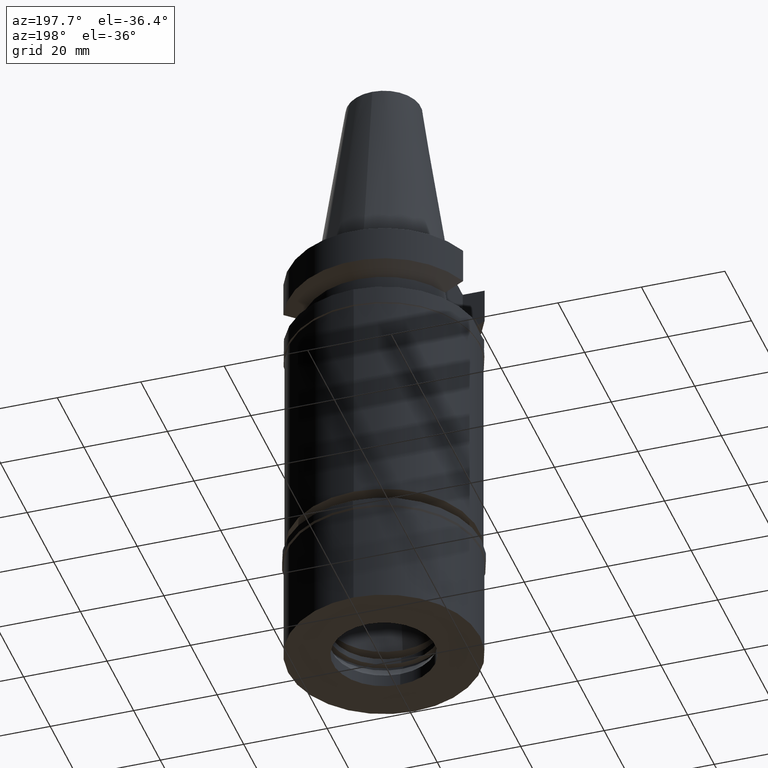
[diagram: clean part render]
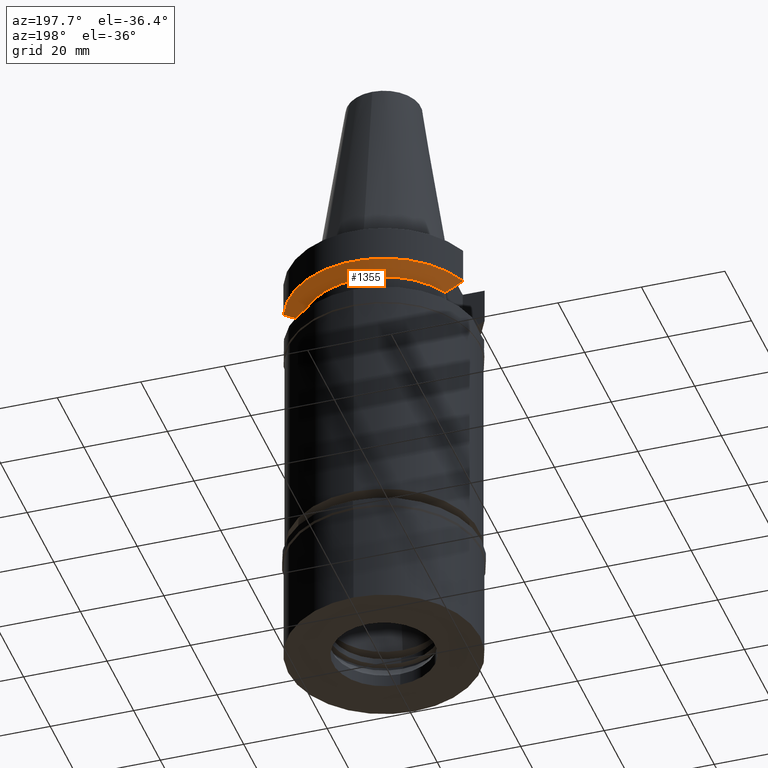
[diagram: same view with one face highlighted and labeled with its STEP entity id]
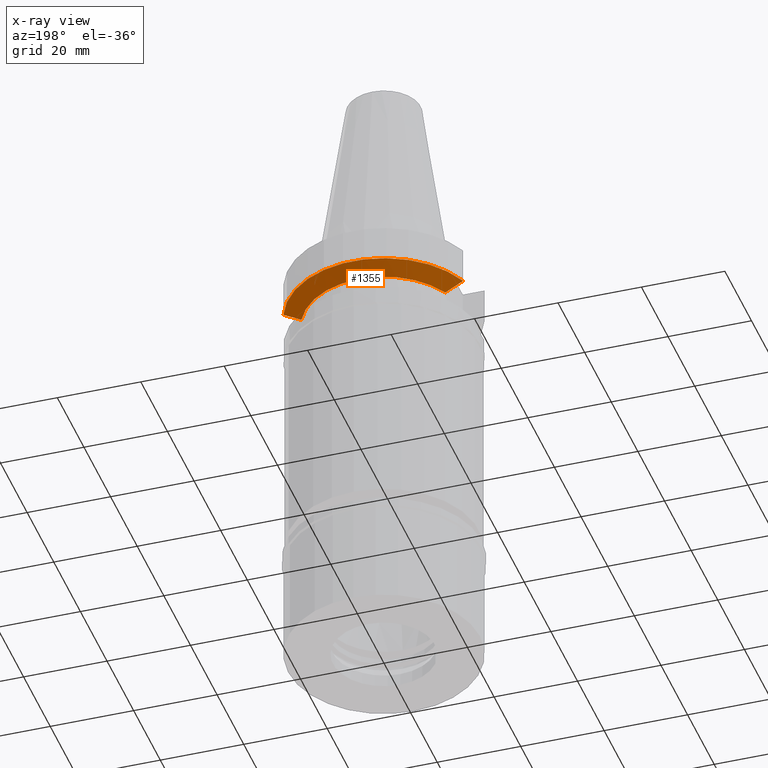
[diagram: x-ray of the same camera — body ghosted, the highlighted face saturated]
A machine part, auxiliary view. The second image highlights one B-rep face of the part: STEP entity #1355.
The next image is the same camera in x-ray: the body ghosted, the highlighted face saturated — about 0% of this face is hidden behind the body in this view.
In plain terms, the highlighted conical surface has half-angle 60 deg.
Its self-contained STEP definition (entity closure, byte-faithful):
#1 = AXIS2_PLACEMENT_3D ( 'NONE', #2934, #586, #2922 ) ;
#121 = CARTESIAN_POINT ( 'NONE',  ( 18.30334768190532557, 8.049999956193227391, -11.30291651679201870 ) ) ;
#128 = CARTESIAN_POINT ( 'NONE',  ( -18.96736186674000280, 8.050001277723000115, -10.94999977542999936 ) ) ;
#151 = CARTESIAN_POINT ( 'NONE',  ( 17.23531622902000038, 7.996491146276001771, -11.87660607782000000 ) ) ;
#162 = EDGE_LOOP ( 'NONE', ( #2795, #2017, #311, #434, #1402, #1819 ) ) ;
#225 = EDGE_CURVE ( 'NONE', #1577, #1808, #2842, .T. ) ;
#311 = ORIENTED_EDGE ( 'NONE', *, *, #556, .F. ) ;
#353 = CARTESIAN_POINT ( 'NONE',  ( 18.96738966530000070, 8.049994318182998043, -10.95000099923000114 ) ) ;
#434 = ORIENTED_EDGE ( 'NONE', *, *, #1979, .F. ) ;
#469 = AXIS2_PLACEMENT_3D ( 'NONE', #1468, #2666, #1459 ) ;
#556 = EDGE_CURVE ( 'NONE', #2228, #2079, #1550, .T. ) ;
#568 = FACE_OUTER_BOUND ( 'NONE', #162, .T. ) ;
#571 = CARTESIAN_POINT ( 'NONE',  ( 17.72598986981198976, 8.027133616248125492, -11.61218197823705545 ) ) ;
#586 = DIRECTION ( 'NONE',  ( 0.0000000000000000000, 0.0000000000000000000, 1.000000000000000000 ) ) ;
#647 = EDGE_CURVE ( 'NONE', #1460, #1808, #1916, .T. ) ;
#792 = CARTESIAN_POINT ( 'NONE',  ( 18.96738966530000070, 8.049994318182998043, -10.95000099923000114 ) ) ;
#799 = B_SPLINE_CURVE_WITH_KNOTS ( 'NONE', 3,
 ( #2981, #912, #2563, #1809 ),
 .UNSPECIFIED., .F., .F.,
 ( 4, 4 ),
 ( 0.0000000000000000000, 1.000000000000000000 ),
 .UNSPECIFIED. ) ;
#912 = CARTESIAN_POINT ( 'NONE',  ( -18.30417677803190202, 8.050000009832551484, -11.30245973780451862 ) ) ;
#1076 = AXIS2_PLACEMENT_3D ( 'NONE', #1118, #2036, #2975 ) ;
#1086 = CARTESIAN_POINT ( 'NONE',  ( 18.96738966530000070, 8.049994318182998043, -10.95000099923000114 ) ) ;
#1087 = VERTEX_POINT ( 'NONE', #2184 ) ;
#1118 = CARTESIAN_POINT ( 'NONE',  ( 0.0000000000000000000, 1.093341284896999988E-14, -10.72190890808999875 ) ) ;
#1140 = CARTESIAN_POINT ( 'NONE',  ( -18.96736186674000280, 8.050001277723000115, -10.94999977542999936 ) ) ;
#1204 = CARTESIAN_POINT ( 'NONE',  ( 21.54524325238000060, 8.049999577379001181, -9.567211146543000311 ) ) ;
#1224 = CARTESIAN_POINT ( 'NONE',  ( 19.78174442298432112, 8.049991903556993122, -10.51718567366341972 ) ) ;
#1355 = ADVANCED_FACE ( 'NONE', ( #568 ), #2348, .T. ) ;
#1393 = CARTESIAN_POINT ( 'NONE',  ( 17.23531622902000038, 7.996491146276001771, -11.87660607782000000 ) ) ;
#1402 = ORIENTED_EDGE ( 'NONE', *, *, #2860, .F. ) ;
#1459 = DIRECTION ( 'NONE',  ( 0.0000000000000000000, 1.000000000000000000, 0.0000000000000000000 ) ) ;
#1460 = VERTEX_POINT ( 'NONE', #1204 ) ;
#1468 = CARTESIAN_POINT ( 'NONE',  ( 0.0000000000000000000, 1.093341284896999988E-14, -11.87660944646999894 ) ) ;
#1550 = B_SPLINE_CURVE_WITH_KNOTS ( 'NONE', 3,
 ( #151, #571, #121, #353 ),
 .UNSPECIFIED., .F., .F.,
 ( 4, 4 ),
 ( 0.0000000000000000000, 1.000000000000000000 ),
 .UNSPECIFIED. ) ;
#1577 = VERTEX_POINT ( 'NONE', #1140 ) ;
#1699 = CARTESIAN_POINT ( 'NONE',  ( -21.54524231189000005, 8.050002094537999753, -9.567194606710000215 ) ) ;
#1706 = CIRCLE ( 'NONE', #469, 19.00000000000000000 ) ;
#1808 = VERTEX_POINT ( 'NONE', #1699 ) ;
#1809 = CARTESIAN_POINT ( 'NONE',  ( -17.23531135310999929, 7.996501749182001184, -11.87660739352000050 ) ) ;
#1819 = ORIENTED_EDGE ( 'NONE', *, *, #225, .T. ) ;
#1878 = B_SPLINE_CURVE_WITH_KNOTS ( 'NONE', 3,
 ( #2858, #2387, #1224, #792 ),
 .UNSPECIFIED., .F., .F.,
 ( 4, 4 ),
 ( 0.0000000000000000000, 1.000000000000000000 ),
 .UNSPECIFIED. ) ;
#1916 = CIRCLE ( 'NONE', #1, 23.00000000000000000 ) ;
#1979 = EDGE_CURVE ( 'NONE', #1087, #2228, #1706, .T. ) ;
#1986 = EDGE_CURVE ( 'NONE', #1460, #2079, #1878, .T. ) ;
#2017 = ORIENTED_EDGE ( 'NONE', *, *, #1986, .T. ) ;
#2036 = DIRECTION ( 'NONE',  ( 0.0000000000000000000, 0.0000000000000000000, 1.000000000000000000 ) ) ;
#2079 = VERTEX_POINT ( 'NONE', #1086 ) ;
#2184 = CARTESIAN_POINT ( 'NONE',  ( -17.23531135310999929, 7.996501749182001184, -11.87660739352000050 ) ) ;
#2210 = CARTESIAN_POINT ( 'NONE',  ( -21.54524231189000005, 8.050002094537999753, -9.567194606710000215 ) ) ;
#2228 = VERTEX_POINT ( 'NONE', #1393 ) ;
#2348 = CONICAL_SURFACE ( 'NONE', #1076, 21.00000000000000000, 1.047197551196400456 ) ;
#2387 = CARTESIAN_POINT ( 'NONE',  ( 20.64098922513855783, 8.049999155450747068, -10.05625859774404773 ) ) ;
#2563 = CARTESIAN_POINT ( 'NONE',  ( -17.72682660682189848, 8.027186146991873272, -11.61172866957230276 ) ) ;
#2642 = CARTESIAN_POINT ( 'NONE',  ( -20.64102060459518384, 8.050004185766360010, -10.05624058887162064 ) ) ;
#2666 = DIRECTION ( 'NONE',  ( 0.0000000000000000000, 0.0000000000000000000, -1.000000000000000000 ) ) ;
#2679 = CARTESIAN_POINT ( 'NONE',  ( -19.78176599729542318, 8.050001299788604570, -10.51717224217189006 ) ) ;
#2795 = ORIENTED_EDGE ( 'NONE', *, *, #647, .F. ) ;
#2842 = B_SPLINE_CURVE_WITH_KNOTS ( 'NONE', 3,
 ( #128, #2679, #2642, #2210 ),
 .UNSPECIFIED., .F., .F.,
 ( 4, 4 ),
 ( 0.0000000000000000000, 1.000000000000000000 ),
 .UNSPECIFIED. ) ;
#2858 = CARTESIAN_POINT ( 'NONE',  ( 21.54524325238000060, 8.049999577379001181, -9.567211146543000311 ) ) ;
#2860 = EDGE_CURVE ( 'NONE', #1577, #1087, #799, .T. ) ;
#2922 = DIRECTION ( 'NONE',  ( 0.0000000000000000000, 1.000000000000000000, 0.0000000000000000000 ) ) ;
#2934 = CARTESIAN_POINT ( 'NONE',  ( 0.0000000000000000000, 1.093341284896999988E-14, -9.567208369710998639 ) ) ;
#2975 = DIRECTION ( 'NONE',  ( 0.0000000000000000000, 1.000000000000000000, 0.0000000000000000000 ) ) ;
#2981 = CARTESIAN_POINT ( 'NONE',  ( -18.96736186674000280, 8.050001277723000115, -10.94999977542999936 ) ) ;